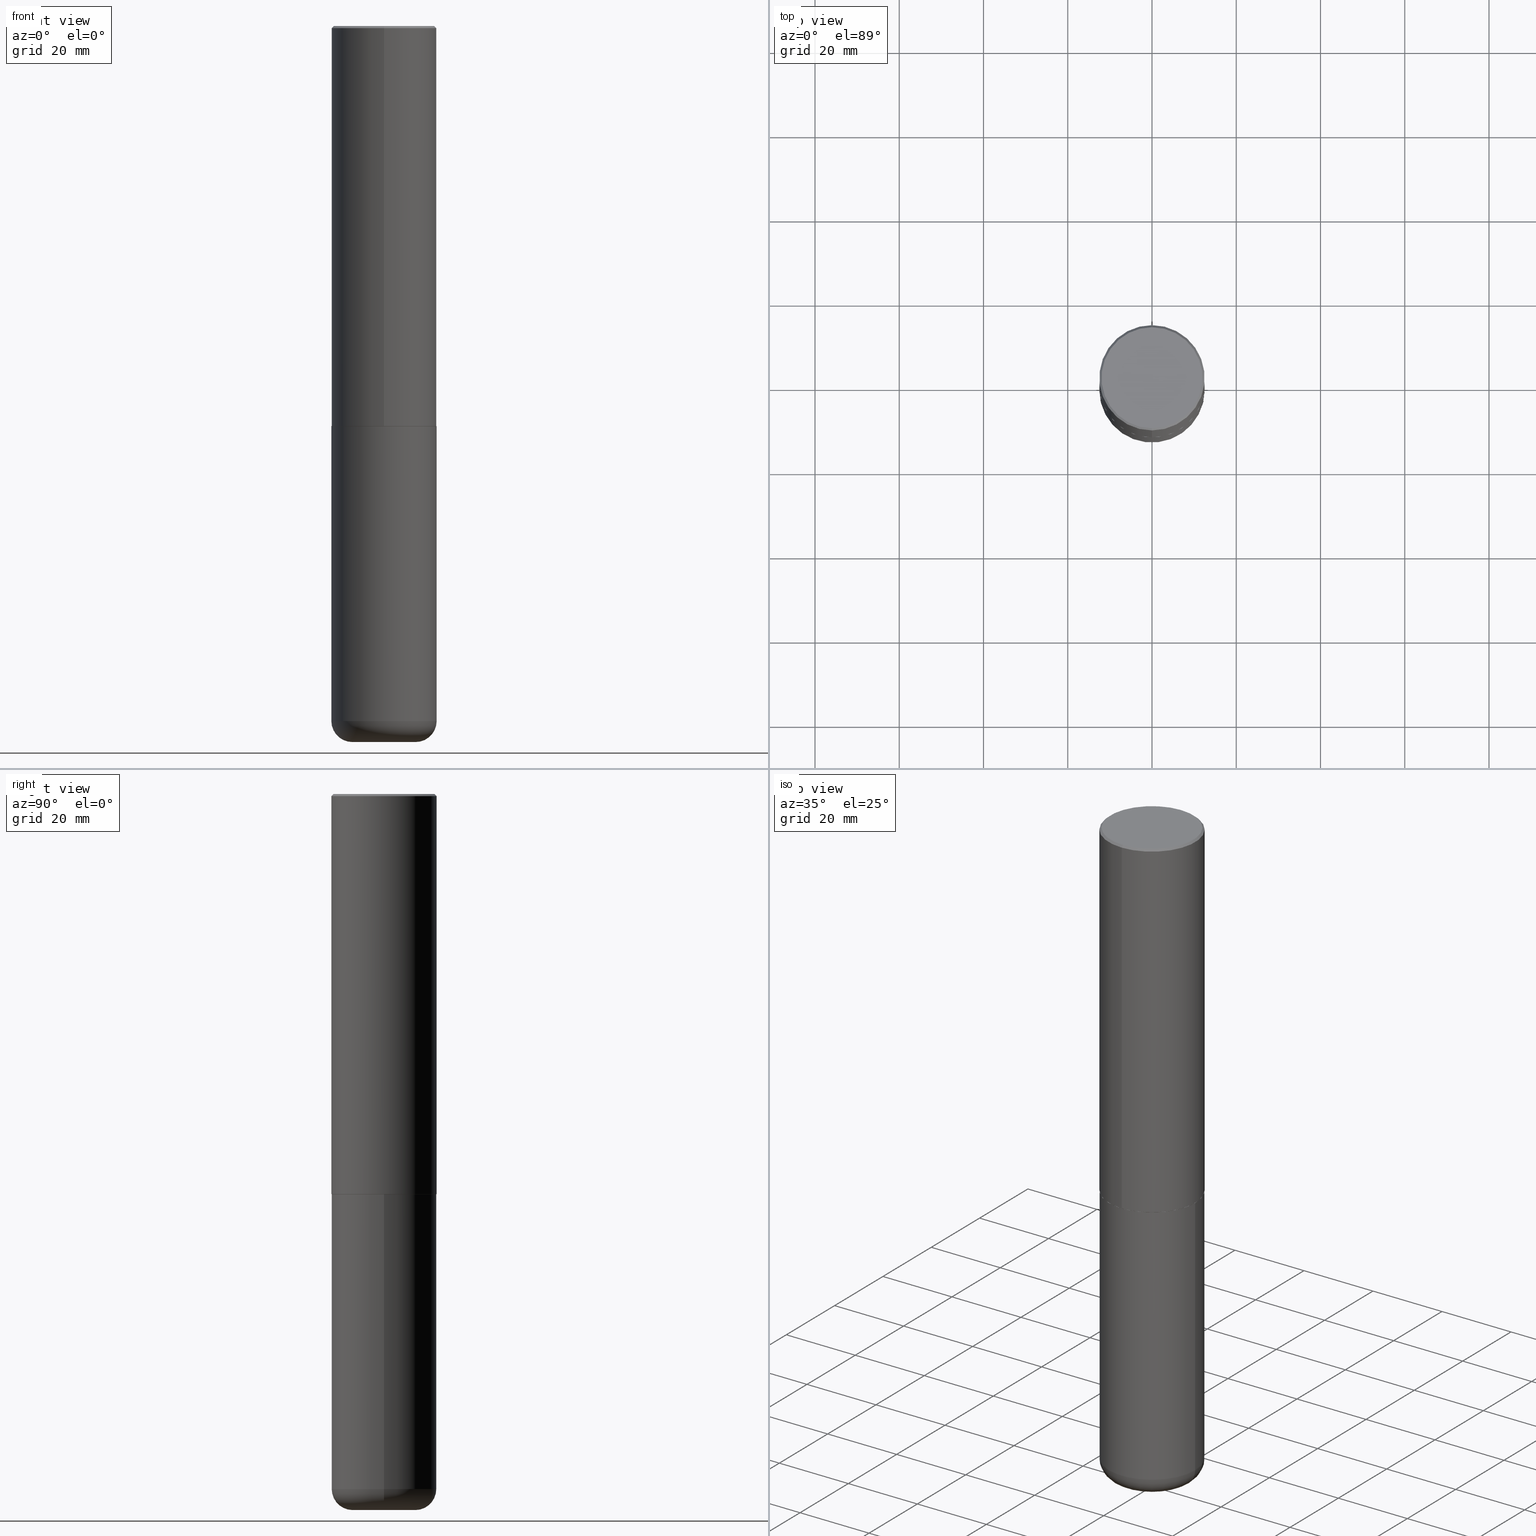
[diagram: canonical four-view strip — front | top / right | iso, engineering-drawing reading convention]
A machine part, canonical four-view strip (front | top / right | iso — engineering-drawing reading convention). The complete STEP part file that produces these views, byte-faithful:
ISO-10303-21;
HEADER;
FILE_DESCRIPTION (( 'STEP AP203' ),
    '1' );
FILE_NAME ('47632.STEP',
    '2024-03-06T19:43:53',
    ( '' ),
    ( '' ),
    'SwSTEP 2.0',
    'SolidWorks 2023',
    '' );
FILE_SCHEMA (( 'CONFIG_CONTROL_DESIGN' ));
ENDSEC;

DATA;
#1 = EDGE_LOOP ( 'NONE', ( #55, #226, #225, #96 ) ) ;
#2 = ORIENTED_EDGE ( 'NONE', *, *, #336, .T. ) ;
#3 = SHAPE_DEFINITION_REPRESENTATION ( #238, #382 ) ;
#4 = CIRCLE ( 'NONE', #80, 0.4921499999999999764 ) ;
#5 = AXIS2_PLACEMENT_3D ( 'NONE', #122, #49, #256 ) ;
#6 = LENGTH_MEASURE_WITH_UNIT ( LENGTH_MEASURE( 0.02539999999999999897 ), #331 );
#7 = VERTEX_POINT ( 'NONE', #363 ) ;
#8 = CALENDAR_DATE ( 2024, 6, 3 ) ;
#9 = EDGE_CURVE ( 'NONE', #65, #27, #166, .T. ) ;
#10 = CIRCLE ( 'NONE', #140, 0.4921499999999999764 ) ;
#11 = DIRECTION ( 'NONE',  ( -6.982962677686265922E-15, -1.000000000000000000, 3.337287582609300506E-15 ) ) ;
#12 = DIRECTION ( 'NONE',  ( 7.105427357601001859E-15, 1.000000000000000000, -3.491481338843145583E-15 ) ) ;
#13 = FACE_OUTER_BOUND ( 'NONE', #262, .T. ) ;
#14 = DIRECTION ( 'NONE',  ( 4.937700262164540154E-15, 0.7071067811865440200, -0.7071067811865511255 ) ) ;
#15 = LINE ( 'NONE', #81, #221 ) ;
#16 = DIRECTION ( 'NONE',  ( -2.445468806185136597E-29, 3.491481338843145583E-15, 1.000000000000000000 ) ) ;
#17 = EDGE_CURVE ( 'NONE', #417, #24, #20, .T. ) ;
#18 = CARTESIAN_POINT ( 'NONE',  ( -3.436665081823296565E-15, -0.4921500000000000874, 1.717974658438411319E-15 ) ) ;
#19 = DIRECTION ( 'NONE',  ( -2.445976594451651952E-29, 3.490754157143982552E-15, 1.000000000000000000 ) ) ;
#20 = CIRCLE ( 'NONE', #376, 0.4911499999999999755 ) ;
#21 = DIRECTION ( 'NONE',  ( -2.445976594451651392E-29, 3.490754157143982552E-15, 1.000000000000000000 ) ) ;
#22 = CARTESIAN_POINT ( 'NONE',  ( -3.307789109625541747E-15, -0.4721499999999996255, 1.869778885941491673E-15 ) ) ;
#23 = DIRECTION ( 'NONE',  ( -6.982962677686265922E-15, -1.000000000000000000, 3.337287582609300506E-15 ) ) ;
#24 = VERTEX_POINT ( 'NONE', #284 ) ;
#25 = EDGE_CURVE ( 'NONE', #33, #7, #288, .T. ) ;
#26 = CIRCLE ( 'NONE', #311, 0.4921500000000003650 ) ;
#27 = VERTEX_POINT ( 'NONE', #149 ) ;
#28 = DIRECTION ( 'NONE',  ( -2.445468806185136597E-29, 3.491481338843145583E-15, 1.000000000000000000 ) ) ;
#29 = EDGE_CURVE ( 'NONE', #332, #95, #4, .T. ) ;
#30 = ORIENTED_EDGE ( 'NONE', *, *, #204, .T. ) ;
#31 = ORIENTED_EDGE ( 'NONE', *, *, #103, .F. ) ;
#32 = ORIENTED_EDGE ( 'NONE', *, *, #366, .T. ) ;
#33 = VERTEX_POINT ( 'NONE', #117 ) ;
#34 = AXIS2_PLACEMENT_3D ( 'NONE', #404, #348, #114 ) ;
#35 = APPROVAL_DATE_TIME ( #66, #329 ) ;
#36 = PERSON_AND_ORGANIZATION ( #93, #415 ) ;
#37 = CIRCLE ( 'NONE', #178, 0.1968999999999995754 ) ;
#38 = VECTOR ( 'NONE', #193, 39.37007874015748854 ) ;
#39 = DIRECTION ( 'NONE',  ( -2.445468806185136597E-29, 3.491481338843145583E-15, 1.000000000000000000 ) ) ;
#40 = DIRECTION ( 'NONE',  ( 6.982962677686265922E-15, 1.000000000000000000, -3.486624039460257331E-15 ) ) ;
#41 = DIRECTION ( 'NONE',  ( -2.445468806185136597E-29, 3.491481338843145583E-15, 1.000000000000000000 ) ) ;
#42 = EDGE_CURVE ( 'NONE', #95, #332, #10, .T. ) ;
#43 = DIRECTION ( 'NONE',  ( -2.445976594451651952E-29, 3.490754157143982552E-15, 1.000000000000000000 ) ) ;
#44 = CYLINDRICAL_SURFACE ( 'NONE', #151, 0.4921500000000000874 ) ;
#45 = VECTOR ( 'NONE', #154, 39.37007874015748143 ) ;
#46 = CIRCLE ( 'NONE', #112, 0.2952500000000000124 ) ;
#47 = CARTESIAN_POINT ( 'NONE',  ( 4.891953188903329688E-31, -6.981508314288001687E-17, -0.02000000000000010797 ) ) ;
#48 = DIRECTION ( 'NONE',  ( -4.937700262167413974E-15, -0.7071067811869555797, 0.7071067811861394548 ) ) ;
#49 = DIRECTION ( 'NONE',  ( 2.438088387897960049E-29, -3.491481338843145188E-15, -1.000000000000000000 ) ) ;
#50 = AXIS2_PLACEMENT_3D ( 'NONE', #142, #272, #219 ) ;
#51 = CARTESIAN_POINT ( 'NONE',  ( -0.4921499999999999764, 3.496936074043332897E-15, -2.420853904668951509E-29 ) ) ;
#52 = SECURITY_CLASSIFICATION ( '', '', #156 ) ;
#53 = LINE ( 'NONE', #319, #45 ) ;
#54 = DIRECTION ( 'NONE',  ( 1.000000000000000000, -6.982962677686265922E-15, 0.000000000000000000 ) ) ;
#55 = ORIENTED_EDGE ( 'NONE', *, *, #29, .T. ) ;
#56 = PERSON_AND_ORGANIZATION_ROLE ( 'classification_officer' ) ;
#57 = CARTESIAN_POINT ( 'NONE',  ( 9.146297882013029477E-29, -1.305848935540725085E-14, -3.740100000000000424 ) ) ;
#58 = DIRECTION ( 'NONE',  ( -2.445976594451651952E-29, 3.490754157143982552E-15, 1.000000000000000000 ) ) ;
#59 = AXIS2_PLACEMENT_3D ( 'NONE', #76, #148, #209 ) ;
#60 =( GEOMETRIC_REPRESENTATION_CONTEXT ( 3 ) GLOBAL_UNCERTAINTY_ASSIGNED_CONTEXT ( ( #75 ) ) GLOBAL_UNIT_ASSIGNED_CONTEXT ( ( #413, #200, #97 ) ) REPRESENTATION_CONTEXT ( 'NONE', 'WORKASPACE' ) );
#61 = ORIENTED_EDGE ( 'NONE', *, *, #241, .F. ) ;
#62 = COORDINATED_UNIVERSAL_TIME_OFFSET ( 5, 0, .BEHIND. ) ;
#63 = ORIENTED_EDGE ( 'NONE', *, *, #17, .F. ) ;
#64 = ADVANCED_FACE ( 'NONE', ( #108 ), #104, .T. ) ;
#65 = VERTEX_POINT ( 'NONE', #173 ) ;
#66 = DATE_AND_TIME ( #302, #402 ) ;
#67 = DESIGN_CONTEXT ( 'detailed design', #116, 'design' ) ;
#68 = CARTESIAN_POINT ( 'NONE',  ( -3.429682119145517860E-15, -0.4911500000000130206, -3.740099999999998204 ) ) ;
#69 = DATE_AND_TIME ( #8, #260 ) ;
#70 = CC_DESIGN_PERSON_AND_ORGANIZATION_ASSIGNMENT ( #135, #356, ( #73 ) ) ;
#71 = DIRECTION ( 'NONE',  ( 0.000000000000000000, 0.000000000000000000, 1.000000000000000000 ) ) ;
#72 = CIRCLE ( 'NONE', #206, 0.2952500000000000124 ) ;
#73 = PRODUCT_DEFINITION_FORMATION_WITH_SPECIFIED_SOURCE ( 'ANY', '', #378, .NOT_KNOWN. ) ;
#74 = CARTESIAN_POINT ( 'NONE',  ( 4.891953188903329688E-31, -6.981508314288001687E-17, -0.02000000000000010797 ) ) ;
#75 = UNCERTAINTY_MEASURE_WITH_UNIT (LENGTH_MEASURE( 1.000000000000000082E-05 ), #413, 'distance_accuracy_value', 'NONE');
#76 = CARTESIAN_POINT ( 'NONE',  ( 1.588576536497864771E-28, -2.268066277712507367E-14, -6.495999999999999552 ) ) ;
#77 = DIRECTION ( 'NONE',  ( -6.982962677686265922E-15, -1.000000000000000000, 3.490754157143982946E-15 ) ) ;
#78 = CARTESIAN_POINT ( 'NONE',  ( -5.420756467185317189E-45, 7.736185299407739239E-31, 2.216193106459615290E-16 ) ) ;
#79 = ORIENTED_EDGE ( 'NONE', *, *, #42, .F. ) ;
#80 = AXIS2_PLACEMENT_3D ( 'NONE', #373, #210, #399 ) ;
#81 = CARTESIAN_POINT ( 'NONE',  ( 3.496936074043333291E-15, 0.4921500000000000874, -1.717974658438411319E-15 ) ) ;
#82 = EDGE_CURVE ( 'NONE', #383, #95, #37, .T. ) ;
#83 = DIRECTION ( 'NONE',  ( -1.000000000000000000, 6.982962677686265922E-15, -4.876176775795935793E-29 ) ) ;
#84 = DIRECTION ( 'NONE',  ( 1.000000000000000000, -6.982962677686265922E-15, 4.876176775795935793E-29 ) ) ;
#85 = FACE_OUTER_BOUND ( 'NONE', #355, .T. ) ;
#86 = EDGE_CURVE ( 'NONE', #100, #91, #235, .T. ) ;
#87 = CLOSED_SHELL ( 'NONE', ( #183, #120, #64, #249, #132, #322, #354, #90 ) ) ;
#88 = DIRECTION ( 'NONE',  ( -6.982962677686265922E-15, -1.000000000000000000, 3.337287582609300506E-15 ) ) ;
#89 = DIRECTION ( 'NONE',  ( 1.000000000000000000, -6.982962677686265922E-15, 0.000000000000000000 ) ) ;
#90 = ADVANCED_FACE ( 'NONE', ( #411 ), #224, .F. ) ;
#91 = VERTEX_POINT ( 'NONE', #372 ) ;
#92 = ORIENTED_EDGE ( 'NONE', *, *, #29, .F. ) ;
#93 = PERSON ( 'UNSPECIFIED', 'UNSPECIFIED', 'UNSPECIFIED', ('UNSPECIFIED'), ('UNSPECIFIED'), ('UNSPECIFIED') ) ;
#94 = FACE_OUTER_BOUND ( 'NONE', #141, .T. ) ;
#95 = VERTEX_POINT ( 'NONE', #213 ) ;
#96 = ORIENTED_EDGE ( 'NONE', *, *, #366, .F. ) ;
#97 =( NAMED_UNIT ( * ) SI_UNIT ( $, .STERADIAN. ) SOLID_ANGLE_UNIT ( ) );
#98 = AXIS2_PLACEMENT_3D ( 'NONE', #128, #251, #392 ) ;
#99 = ORIENTED_EDGE ( 'NONE', *, *, #375, .F. ) ;
#100 = VERTEX_POINT ( 'NONE', #406 ) ;
#101 = ORIENTED_EDGE ( 'NONE', *, *, #172, .T. ) ;
#102 = ORIENTED_EDGE ( 'NONE', *, *, #389, .F. ) ;
#103 = EDGE_CURVE ( 'NONE', #254, #7, #315, .T. ) ;
#104 = CONICAL_SURFACE ( 'NONE', #414, 0.4921499999999999209, 0.7853981633974467247 ) ;
#105 = CC_DESIGN_APPROVAL ( #275, ( #52 ) ) ;
#106 = PERSON_AND_ORGANIZATION ( #93, #415 ) ;
#107 = CARTESIAN_POINT ( 'NONE',  ( 9.146297882013029477E-29, -1.305848935540725085E-14, -3.740100000000000424 ) ) ;
#108 = FACE_OUTER_BOUND ( 'NONE', #175, .T. ) ;
#109 = LINE ( 'NONE', #18, #347 ) ;
#110 = DIRECTION ( 'NONE',  ( -2.445468806185136597E-29, 3.491481338843145583E-15, 1.000000000000000000 ) ) ;
#111 = CIRCLE ( 'NONE', #34, 0.4921499999999999209 ) ;
#112 = AXIS2_PLACEMENT_3D ( 'NONE', #369, #39, #343 ) ;
#113 = CARTESIAN_POINT ( 'NONE',  ( -3.429682119145517860E-15, -0.4911500000000130206, -3.740099999999998204 ) ) ;
#114 = DIRECTION ( 'NONE',  ( -6.982962677686265922E-15, -1.000000000000000000, 3.486624039460257331E-15 ) ) ;
#115 = DIRECTION ( 'NONE',  ( 1.000000000000000000, -6.982962677686265922E-15, 0.000000000000000000 ) ) ;
#116 = APPLICATION_CONTEXT ( 'configuration controlled 3d designs of mechanical parts and assemblies' ) ;
#117 = CARTESIAN_POINT ( 'NONE',  ( -3.376394089603257868E-15, -0.4921499999999999764, -0.01999999999999839059 ) ) ;
#118 = PLANE ( 'NONE',  #274 ) ;
#119 = DIRECTION ( 'NONE',  ( -2.445976594451651952E-29, 3.490754157143982552E-15, 1.000000000000000000 ) ) ;
#120 = ADVANCED_FACE ( 'NONE', ( #408 ), #182, .T. ) ;
#121 = CALENDAR_DATE ( 2024, 6, 3 ) ;
#122 = CARTESIAN_POINT ( 'NONE',  ( 3.366467196184149442E-28, 1.402716959511487627E-15, -6.692899999999999849 ) ) ;
#123 = AXIS2_PLACEMENT_3D ( 'NONE', #276, #43, #11 ) ;
#124 = CARTESIAN_POINT ( 'NONE',  ( -0.2952500000000000124, -2.022699236424666989E-14, -6.692899999999998961 ) ) ;
#125 = AXIS2_PLACEMENT_3D ( 'NONE', #145, #273, #88 ) ;
#126 = CARTESIAN_POINT ( 'NONE',  ( 9.148197060908621523E-29, -1.305576962313420868E-14, -3.740099999999999980 ) ) ;
#127 = PLANE ( 'NONE',  #5 ) ;
#128 = CARTESIAN_POINT ( 'NONE',  ( 0.000000000000000000, 0.000000000000000000, 0.000000000000000000 ) ) ;
#129 = ORIENTED_EDGE ( 'NONE', *, *, #133, .T. ) ;
#130 = DIRECTION ( 'NONE',  ( -6.982962677686265922E-15, -1.000000000000000000, 3.490754157143982552E-15 ) ) ;
#131 = CYLINDRICAL_SURFACE ( 'NONE', #98, 0.4921499999999999764 ) ;
#132 = ADVANCED_FACE ( 'NONE', ( #85 ), #44, .T. ) ;
#133 = EDGE_CURVE ( 'NONE', #24, #91, #53, .T. ) ;
#134 = ORIENTED_EDGE ( 'NONE', *, *, #246, .F. ) ;
#135 = PERSON_AND_ORGANIZATION ( #93, #415 ) ;
#136 = EDGE_LOOP ( 'NONE', ( #102, #358, #294, #418 ) ) ;
#137 = EDGE_LOOP ( 'NONE', ( #301, #387, #92, #416 ) ) ;
#138 = ORIENTED_EDGE ( 'NONE', *, *, #167, .T. ) ;
#139 = VERTEX_POINT ( 'NONE', #22 ) ;
#140 = AXIS2_PLACEMENT_3D ( 'NONE', #313, #16, #115 ) ;
#141 = EDGE_LOOP ( 'NONE', ( #63, #234 ) ) ;
#142 = CARTESIAN_POINT ( 'NONE',  ( 4.891953188903329688E-31, -6.981508314288001687E-17, -0.02000000000000010797 ) ) ;
#143 = DIRECTION ( 'NONE',  ( 1.000000000000000000, -6.982962677686264344E-15, 4.883557194083111780E-29 ) ) ;
#144 = CARTESIAN_POINT ( 'NONE',  ( 9.145751084314172604E-29, -1.305227886897706845E-14, -3.739100000000000534 ) ) ;
#145 = CARTESIAN_POINT ( 'NONE',  ( 9.148197060908621523E-29, -1.305576962313420868E-14, -3.740099999999999980 ) ) ;
#146 = AXIS2_PLACEMENT_3D ( 'NONE', #47, #184, #314 ) ;
#147 = LOCAL_TIME ( 14, 43, 53.00000000000000000, #255 ) ;
#148 = DIRECTION ( 'NONE',  ( -2.445468806185136597E-29, 3.491481338843145583E-15, 1.000000000000000000 ) ) ;
#149 = CARTESIAN_POINT ( 'NONE',  ( -0.4921499999999999764, -1.437263999222282936E-14, -3.740100000000000424 ) ) ;
#150 = DIRECTION ( 'NONE',  ( -6.982962677686265922E-15, -1.000000000000000000, 3.330506545156063496E-15 ) ) ;
#151 = AXIS2_PLACEMENT_3D ( 'NONE', #177, #277, #188 ) ;
#152 = CIRCLE ( 'NONE', #365, 0.4911499999999999755 ) ;
#153 = DIRECTION ( 'NONE',  ( -2.445468806185136877E-29, 3.491481338843145188E-15, 1.000000000000000000 ) ) ;
#154 = DIRECTION ( 'NONE',  ( 5.024295867790978808E-15, 0.7071067811869604647, 0.7071067811861345698 ) ) ;
#155 = CC_DESIGN_PERSON_AND_ORGANIZATION_ASSIGNMENT ( #381, #56, ( #52 ) ) ;
#156 = SECURITY_CLASSIFICATION_LEVEL ( 'unclassified' ) ;
#157 = PLANE ( 'NONE',  #282 ) ;
#158 = ORIENTED_EDGE ( 'NONE', *, *, #162, .F. ) ;
#159 = PERSON_AND_ORGANIZATION ( #93, #415 ) ;
#160 = CIRCLE ( 'NONE', #265, 0.4721499999999996255 ) ;
#161 = ORIENTED_EDGE ( 'NONE', *, *, #217, .T. ) ;
#162 = EDGE_CURVE ( 'NONE', #383, #333, #72, .T. ) ;
#163 = FACE_OUTER_BOUND ( 'NONE', #192, .T. ) ;
#164 = DIRECTION ( 'NONE',  ( -2.445976594451651952E-29, 3.490754157143982552E-15, 1.000000000000000000 ) ) ;
#165 = ORIENTED_EDGE ( 'NONE', *, *, #212, .T. ) ;
#166 = CIRCLE ( 'NONE', #230, 0.4921499999999999764 ) ;
#167 = EDGE_CURVE ( 'NONE', #139, #254, #179, .T. ) ;
#168 = PERSON_AND_ORGANIZATION ( #93, #415 ) ;
#169 = APPROVAL_PERSON_ORGANIZATION ( #190, #329, #237 ) ;
#170 = EDGE_LOOP ( 'NONE', ( #30, #138 ) ) ;
#171 = DIMENSIONAL_EXPONENTS ( 1.000000000000000000, 0.000000000000000000, 0.000000000000000000, 0.000000000000000000, 0.000000000000000000, 0.000000000000000000, 0.000000000000000000 ) ;
#172 = EDGE_CURVE ( 'NONE', #100, #33, #109, .T. ) ;
#173 = CARTESIAN_POINT ( 'NONE',  ( 0.4921499999999999764, -1.649515443723054663E-14, -3.740100000000000424 ) ) ;
#174 = FACE_OUTER_BOUND ( 'NONE', #136, .T. ) ;
#175 = EDGE_LOOP ( 'NONE', ( #257, #194, #390, #31 ) ) ;
#176 = CARTESIAN_POINT ( 'NONE',  ( 1.588576536497864771E-28, -2.268066277712507367E-14, -6.495999999999999552 ) ) ;
#177 = CARTESIAN_POINT ( 'NONE',  ( 0.000000000000000000, 0.000000000000000000, 0.000000000000000000 ) ) ;
#178 = AXIS2_PLACEMENT_3D ( 'NONE', #306, #12, #371 ) ;
#179 = CIRCLE ( 'NONE', #239, 0.4721499999999996255 ) ;
#180 = CC_DESIGN_SECURITY_CLASSIFICATION ( #52, ( #73 ) ) ;
#181 = LINE ( 'NONE', #113, #215 ) ;
#182 = CYLINDRICAL_SURFACE ( 'NONE', #281, 0.4921500000000000874 ) ;
#183 = ADVANCED_FACE ( 'NONE', ( #13 ), #196, .T. ) ;
#184 = DIRECTION ( 'NONE',  ( 2.445976594451651952E-29, -3.490754157143982552E-15, -1.000000000000000000 ) ) ;
#185 = LINE ( 'NONE', #223, #300 ) ;
#186 = VECTOR ( 'NONE', #14, 39.37007874015748143 ) ;
#187 = CIRCLE ( 'NONE', #207, 0.4921499999999999764 ) ;
#188 = DIRECTION ( 'NONE',  ( -6.982962677686265922E-15, -1.000000000000000000, 3.490754157143982552E-15 ) ) ;
#189 = PRODUCT_RELATED_PRODUCT_CATEGORY ( 'detail', '', ( #378 ) ) ;
#190 = PERSON_AND_ORGANIZATION ( #93, #415 ) ;
#191 = CALENDAR_DATE ( 2024, 6, 3 ) ;
#192 = EDGE_LOOP ( 'NONE', ( #243, #158 ) ) ;
#193 = DIRECTION ( 'NONE',  ( -4.851104656540955597E-15, -0.7071067811865487940, -0.7071067811865461294 ) ) ;
#194 = ORIENTED_EDGE ( 'NONE', *, *, #389, .T. ) ;
#195 = CARTESIAN_POINT ( 'NONE',  ( 3.297005828269567997E-15, 0.4721499999999996255, -1.537349919972549256E-15 ) ) ;
#196 = CONICAL_SURFACE ( 'NONE', #123, 0.4911499999999999755, 0.7853981633980288146 ) ;
#197 = ORIENTED_EDGE ( 'NONE', *, *, #42, .T. ) ;
#198 = APPROVAL_DATE_TIME ( #258, #344 ) ;
#199 = ADVANCED_FACE ( 'NONE', ( #377 ), #248, .T. ) ;
#200 =( NAMED_UNIT ( * ) PLANE_ANGLE_UNIT ( ) SI_UNIT ( $, .RADIAN. ) );
#201 = ORIENTED_EDGE ( 'NONE', *, *, #82, .F. ) ;
#202 = CC_DESIGN_PERSON_AND_ORGANIZATION_ASSIGNMENT ( #159, #291, ( #73 ) ) ;
#203 = DIRECTION ( 'NONE',  ( 1.000000000000000000, 0.000000000000000000, 0.000000000000000000 ) ) ;
#204 = EDGE_CURVE ( 'NONE', #254, #139, #160, .T. ) ;
#205 = APPLICATION_PROTOCOL_DEFINITION ( 'international standard', 'config_control_design', 1994, #339 ) ;
#206 = AXIS2_PLACEMENT_3D ( 'NONE', #351, #310, #242 ) ;
#207 = AXIS2_PLACEMENT_3D ( 'NONE', #107, #110, #89 ) ;
#208 = DIRECTION ( 'NONE',  ( 2.445976594451651952E-29, -3.490754157143982552E-15, -1.000000000000000000 ) ) ;
#209 = DIRECTION ( 'NONE',  ( 1.000000000000000000, -6.982962677686264344E-15, 4.883557194083111780E-29 ) ) ;
#210 = DIRECTION ( 'NONE',  ( -2.445468806185136597E-29, 3.491481338843145583E-15, 1.000000000000000000 ) ) ;
#211 = CARTESIAN_POINT ( 'NONE',  ( -5.420756467185317189E-45, 7.736185299407739239E-31, 2.216193106459615290E-16 ) ) ;
#212 = EDGE_CURVE ( 'NONE', #333, #332, #395, .T. ) ;
#213 = CARTESIAN_POINT ( 'NONE',  ( -0.4921499999999997543, -1.918372670308173998E-14, -6.495999999999999552 ) ) ;
#214 = DIRECTION ( 'NONE',  ( -6.982962677686265922E-15, -1.000000000000000000, 3.490754157143982946E-15 ) ) ;
#215 = VECTOR ( 'NONE', #48, 39.37007874015748143 ) ;
#216 = VECTOR ( 'NONE', #412, 39.37007874015748143 ) ;
#217 = EDGE_CURVE ( 'NONE', #91, #7, #15, .T. ) ;
#218 = CARTESIAN_POINT ( 'NONE',  ( 0.2952499999999999569, -2.474238250771194590E-14, -6.495999999999999552 ) ) ;
#219 = DIRECTION ( 'NONE',  ( -6.982962677686265922E-15, -1.000000000000000000, 3.486624039460257331E-15 ) ) ;
#220 = DIRECTION ( 'NONE',  ( -6.982962677686265922E-15, -1.000000000000000000, 3.490754157143982552E-15 ) ) ;
#221 = VECTOR ( 'NONE', #349, 39.37007874015748143 ) ;
#222 = APPROVAL_STATUS ( 'not_yet_approved' ) ;
#223 = CARTESIAN_POINT ( 'NONE',  ( 0.4921499999999999764, -3.436665081823295777E-15, 2.399810400207969603E-29 ) ) ;
#224 = PLANE ( 'NONE',  #401 ) ;
#225 = ORIENTED_EDGE ( 'NONE', *, *, #9, .F. ) ;
#226 = ORIENTED_EDGE ( 'NONE', *, *, #375, .T. ) ;
#227 = ORIENTED_EDGE ( 'NONE', *, *, #394, .F. ) ;
#228 = ADVANCED_FACE ( 'NONE', ( #403 ), #259, .T. ) ;
#229 = COORDINATED_UNIVERSAL_TIME_OFFSET ( 5, 0, .BEHIND. ) ;
#230 = AXIS2_PLACEMENT_3D ( 'NONE', #57, #28, #54 ) ;
#231 = LOCAL_TIME ( 14, 43, 53.00000000000000000, #229 ) ;
#232 = FACE_OUTER_BOUND ( 'NONE', #1, .T. ) ;
#233 = EDGE_LOOP ( 'NONE', ( #99, #197, #32, #227 ) ) ;
#234 = ORIENTED_EDGE ( 'NONE', *, *, #336, .F. ) ;
#235 = CIRCLE ( 'NONE', #341, 0.4921500000000003650 ) ;
#236 = CC_DESIGN_APPROVAL ( #344, ( #73 ) ) ;
#237 = APPROVAL_ROLE ( '' ) ;
#238 = PRODUCT_DEFINITION_SHAPE ( 'NONE', 'NONE',  #309 ) ;
#239 = AXIS2_PLACEMENT_3D ( 'NONE', #211, #271, #77 ) ;
#240 = DIRECTION ( 'NONE',  ( -6.982962677686265922E-15, -1.000000000000000000, 3.330506545156063496E-15 ) ) ;
#241 = EDGE_CURVE ( 'NONE', #7, #33, #111, .T. ) ;
#242 = DIRECTION ( 'NONE',  ( 1.000000000000000000, -6.982962677686273021E-15, 0.000000000000000000 ) ) ;
#243 = ORIENTED_EDGE ( 'NONE', *, *, #318, .F. ) ;
#244 = AXIS2_PLACEMENT_3D ( 'NONE', #176, #41, #143 ) ;
#245 = CARTESIAN_POINT ( 'NONE',  ( 9.146297882013029477E-29, -1.305848935540725085E-14, -3.740100000000000424 ) ) ;
#246 = EDGE_CURVE ( 'NONE', #417, #100, #181, .T. ) ;
#247 = FACE_OUTER_BOUND ( 'NONE', #233, .T. ) ;
#248 = TOROIDAL_SURFACE ( 'NONE', #244, 0.2952499999999999569, 0.1968999999999996031 ) ;
#249 = ADVANCED_FACE ( 'NONE', ( #174 ), #334, .T. ) ;
#250 = CARTESIAN_POINT ( 'NONE',  ( -3.376394089603257868E-15, -0.4921499999999999764, -0.01999999999999839059 ) ) ;
#251 = DIRECTION ( 'NONE',  ( -2.445468806185136597E-29, 3.491481338843145583E-15, 1.000000000000000000 ) ) ;
#252 = ORIENTED_EDGE ( 'NONE', *, *, #217, .F. ) ;
#253 = DATE_TIME_ROLE ( 'classification_date' ) ;
#254 = VERTEX_POINT ( 'NONE', #374 ) ;
#255 = COORDINATED_UNIVERSAL_TIME_OFFSET ( 5, 0, .BEHIND. ) ;
#256 = DIRECTION ( 'NONE',  ( -1.000000000000000000, 6.982962677686265922E-15, -4.876176775795935793E-29 ) ) ;
#257 = ORIENTED_EDGE ( 'NONE', *, *, #167, .F. ) ;
#258 = DATE_AND_TIME ( #293, #231 ) ;
#259 = TOROIDAL_SURFACE ( 'NONE', #59, 0.2952499999999999569, 0.1968999999999996031 ) ;
#260 = LOCAL_TIME ( 14, 43, 53.00000000000000000, #367 ) ;
#261 = ORIENTED_EDGE ( 'NONE', *, *, #280, .F. ) ;
#262 = EDGE_LOOP ( 'NONE', ( #370, #129, #298, #134 ) ) ;
#263 = ORIENTED_EDGE ( 'NONE', *, *, #246, .T. ) ;
#264 = APPROVAL_STATUS ( 'not_yet_approved' ) ;
#265 = AXIS2_PLACEMENT_3D ( 'NONE', #78, #342, #214 ) ;
#266 = CC_DESIGN_APPROVAL ( #329, ( #309 ) ) ;
#267 = MANIFOLD_SOLID_BREP ( 'Body-Move/Copy2[1]', #324 ) ;
#268 = MANIFOLD_SOLID_BREP ( 'Body-Move/Copy2[2]', #87 ) ;
#269 = PERSON_AND_ORGANIZATION_ROLE ( 'design_owner' ) ;
#270 = CC_DESIGN_PERSON_AND_ORGANIZATION_ASSIGNMENT ( #168, #396, ( #309 ) ) ;
#271 = DIRECTION ( 'NONE',  ( -2.445976594451651952E-29, 3.490754157143982552E-15, 1.000000000000000000 ) ) ;
#272 = DIRECTION ( 'NONE',  ( -2.445976594451651952E-29, 3.490754157143982552E-15, 1.000000000000000000 ) ) ;
#273 = DIRECTION ( 'NONE',  ( -2.445976594451651952E-29, 3.490754157143982552E-15, 1.000000000000000000 ) ) ;
#274 = AXIS2_PLACEMENT_3D ( 'NONE', #245, #380, #83 ) ;
#275 = APPROVAL ( #222, 'UNSPECIFIED' ) ;
#276 = CARTESIAN_POINT ( 'NONE',  ( 9.148197060908621523E-29, -1.305576962313420868E-14, -3.740099999999999980 ) ) ;
#277 = DIRECTION ( 'NONE',  ( -2.445976594451651952E-29, 3.490754157143982552E-15, 1.000000000000000000 ) ) ;
#278 = DIRECTION ( 'NONE',  ( -6.982962677686266711E-15, -1.000000000000000000, 3.491481338843145583E-15 ) ) ;
#279 = CARTESIAN_POINT ( 'NONE',  ( 9.145751084314172604E-29, -1.305227886897706845E-14, -3.739100000000000534 ) ) ;
#280 = EDGE_CURVE ( 'NONE', #91, #100, #26, .T. ) ;
#281 = AXIS2_PLACEMENT_3D ( 'NONE', #308, #119, #220 ) ;
#282 = AXIS2_PLACEMENT_3D ( 'NONE', #285, #21, #130 ) ;
#283 = CARTESIAN_POINT ( 'NONE',  ( 3.436665081823295777E-15, 0.4921499999999998098, -0.02000000000000182188 ) ) ;
#284 = CARTESIAN_POINT ( 'NONE',  ( 3.493383360364624690E-15, 0.4911499999999869304, -3.740100000000001312 ) ) ;
#285 = CARTESIAN_POINT ( 'NONE',  ( 9.148197060908621523E-29, -1.305576962313420868E-14, -3.740099999999999980 ) ) ;
#286 = APPROVAL_ROLE ( '' ) ;
#287 = LINE ( 'NONE', #51, #216 ) ;
#288 = CIRCLE ( 'NONE', #50, 0.4921499999999999209 ) ;
#289 = EDGE_LOOP ( 'NONE', ( #201, #327, #165, #79 ) ) ;
#290 = APPROVAL_PERSON_ORGANIZATION ( #362, #275, #286 ) ;
#291 = PERSON_AND_ORGANIZATION_ROLE ( 'creator' ) ;
#292 = EDGE_LOOP ( 'NONE', ( #385, #330 ) ) ;
#293 = CALENDAR_DATE ( 2024, 6, 3 ) ;
#294 = ORIENTED_EDGE ( 'NONE', *, *, #103, .T. ) ;
#295 = APPROVAL_DATE_TIME ( #386, #275 ) ;
#296 = ADVANCED_FACE ( 'NONE', ( #405 ), #118, .F. ) ;
#297 = CC_DESIGN_PERSON_AND_ORGANIZATION_ASSIGNMENT ( #106, #269, ( #378 ) ) ;
#298 = ORIENTED_EDGE ( 'NONE', *, *, #86, .F. ) ;
#299 = AXIS2_PLACEMENT_3D ( 'NONE', #218, #278, #305 ) ;
#300 = VECTOR ( 'NONE', #153, 39.37007874015748143 ) ;
#301 = ORIENTED_EDGE ( 'NONE', *, *, #318, .T. ) ;
#302 = CALENDAR_DATE ( 2024, 6, 3 ) ;
#303 = CARTESIAN_POINT ( 'NONE',  ( 0.000000000000000000, 0.000000000000000000, 0.000000000000000000 ) ) ;
#304 = AXIS2_PLACEMENT_3D ( 'NONE', #303, #71, #203 ) ;
#305 = DIRECTION ( 'NONE',  ( 1.000000000000000000, -6.982962677686270655E-15, 0.000000000000000000 ) ) ;
#306 = CARTESIAN_POINT ( 'NONE',  ( -0.2952499999999999569, -2.058278534979337620E-14, -6.495999999999999552 ) ) ;
#307 = FACE_OUTER_BOUND ( 'NONE', #364, .T. ) ;
#308 = CARTESIAN_POINT ( 'NONE',  ( 0.000000000000000000, 0.000000000000000000, 0.000000000000000000 ) ) ;
#309 = PRODUCT_DEFINITION ( 'UNKNOWN', '', #73, #67 ) ;
#310 = DIRECTION ( 'NONE',  ( -2.445468806185136597E-29, 3.491481338843145583E-15, 1.000000000000000000 ) ) ;
#311 = AXIS2_PLACEMENT_3D ( 'NONE', #279, #19, #150 ) ;
#312 = AXIS2_PLACEMENT_3D ( 'NONE', #407, #353, #84 ) ;
#313 = CARTESIAN_POINT ( 'NONE',  ( 1.588576536497864771E-28, -2.268066277712507367E-14, -6.495999999999999552 ) ) ;
#314 = DIRECTION ( 'NONE',  ( 6.982962677686265922E-15, 1.000000000000000000, -3.486624039460257331E-15 ) ) ;
#315 = LINE ( 'NONE', #283, #186 ) ;
#316 = DIRECTION ( 'NONE',  ( -6.982962677686265922E-15, -1.000000000000000000, 3.337287582609300506E-15 ) ) ;
#317 = CARTESIAN_POINT ( 'NONE',  ( 0.2952500000000000124, -2.542985518333015688E-14, -6.692899999999998961 ) ) ;
#318 = EDGE_CURVE ( 'NONE', #333, #383, #46, .T. ) ;
#319 = CARTESIAN_POINT ( 'NONE',  ( 3.489830646685823002E-15, 0.4911499999999869304, -3.740100000000001312 ) ) ;
#320 = CARTESIAN_POINT ( 'NONE',  ( 0.4921499999999997543, -2.611732785894836787E-14, -6.495999999999999552 ) ) ;
#321 = ORIENTED_EDGE ( 'NONE', *, *, #25, .F. ) ;
#322 = ADVANCED_FACE ( 'NONE', ( #307 ), #388, .T. ) ;
#323 = CYLINDRICAL_SURFACE ( 'NONE', #312, 0.4921499999999999764 ) ;
#324 = CLOSED_SHELL ( 'NONE', ( #398, #228, #296, #368, #199, #361 ) ) ;
#325 = ORIENTED_EDGE ( 'NONE', *, *, #133, .F. ) ;
#326 = APPROVAL_PERSON_ORGANIZATION ( #36, #344, #352 ) ;
#327 = ORIENTED_EDGE ( 'NONE', *, *, #162, .T. ) ;
#328 = DIRECTION ( 'NONE',  ( 2.445976594451651392E-29, -3.490754157143982552E-15, -1.000000000000000000 ) ) ;
#329 = APPROVAL ( #264, 'UNSPECIFIED' ) ;
#330 = ORIENTED_EDGE ( 'NONE', *, *, #394, .T. ) ;
#331 =( LENGTH_UNIT ( ) NAMED_UNIT ( * ) SI_UNIT ( $, .METRE. ) );
#332 = VERTEX_POINT ( 'NONE', #320 ) ;
#333 = VERTEX_POINT ( 'NONE', #317 ) ;
#334 = CONICAL_SURFACE ( 'NONE', #146, 0.4921499999999999209, 0.7853981633974467247 ) ;
#335 = LOCAL_TIME ( 14, 43, 53.00000000000000000, #62 ) ;
#336 = EDGE_CURVE ( 'NONE', #24, #417, #152, .T. ) ;
#337 = DATE_TIME_ROLE ( 'creation_date' ) ;
#338 = MECHANICAL_CONTEXT ( 'NONE', #339, 'mechanical' ) ;
#339 = APPLICATION_CONTEXT ( 'configuration controlled 3d designs of mechanical parts and assemblies' ) ;
#340 = COORDINATED_UNIVERSAL_TIME_OFFSET ( 5, 0, .BEHIND. ) ;
#341 = AXIS2_PLACEMENT_3D ( 'NONE', #144, #400, #240 ) ;
#342 = DIRECTION ( 'NONE',  ( -2.445976594451651952E-29, 3.490754157143982552E-15, 1.000000000000000000 ) ) ;
#343 = DIRECTION ( 'NONE',  ( 1.000000000000000000, -6.982962677686273021E-15, 0.000000000000000000 ) ) ;
#344 = APPROVAL ( #350, 'UNSPECIFIED' ) ;
#345 = DIRECTION ( 'NONE',  ( -2.445976594451651672E-29, 3.490754157143982552E-15, 1.000000000000000000 ) ) ;
#346 = DIRECTION ( 'NONE',  ( 6.982962677686265922E-15, 1.000000000000000000, -3.490754157143982552E-15 ) ) ;
#347 = VECTOR ( 'NONE', #345, 39.37007874015748143 ) ;
#348 = DIRECTION ( 'NONE',  ( -2.445976594451651952E-29, 3.490754157143982552E-15, 1.000000000000000000 ) ) ;
#349 = DIRECTION ( 'NONE',  ( -2.445976594451651672E-29, 3.490754157143982552E-15, 1.000000000000000000 ) ) ;
#350 = APPROVAL_STATUS ( 'not_yet_approved' ) ;
#351 = CARTESIAN_POINT ( 'NONE',  ( 1.636727817291649742E-28, -2.336813545274328465E-14, -6.692899999999998961 ) ) ;
#352 = APPROVAL_ROLE ( '' ) ;
#353 = DIRECTION ( 'NONE',  ( -2.445468806185136597E-29, 3.491481338843145583E-15, 1.000000000000000000 ) ) ;
#354 = ADVANCED_FACE ( 'NONE', ( #94 ), #157, .F. ) ;
#355 = EDGE_LOOP ( 'NONE', ( #252, #393, #101, #61 ) ) ;
#356 = PERSON_AND_ORGANIZATION_ROLE ( 'design_supplier' ) ;
#357 = LINE ( 'NONE', #250, #38 ) ;
#358 = ORIENTED_EDGE ( 'NONE', *, *, #204, .F. ) ;
#359 = CARTESIAN_POINT ( 'NONE',  ( 9.148197060908621523E-29, -1.305576962313420868E-14, -3.740099999999999980 ) ) ;
#360 = ORIENTED_EDGE ( 'NONE', *, *, #86, .T. ) ;
#361 = ADVANCED_FACE ( 'NONE', ( #163 ), #127, .T. ) ;
#362 = PERSON_AND_ORGANIZATION ( #93, #415 ) ;
#363 = CARTESIAN_POINT ( 'NONE',  ( 3.436665081823295777E-15, 0.4921499999999998098, -0.02000000000000182188 ) ) ;
#364 = EDGE_LOOP ( 'NONE', ( #325, #2, #263, #261 ) ) ;
#365 = AXIS2_PLACEMENT_3D ( 'NONE', #359, #58, #23 ) ;
#366 = EDGE_CURVE ( 'NONE', #332, #65, #185, .T. ) ;
#367 = COORDINATED_UNIVERSAL_TIME_OFFSET ( 5, 0, .BEHIND. ) ;
#368 = ADVANCED_FACE ( 'NONE', ( #247 ), #323, .T. ) ;
#369 = CARTESIAN_POINT ( 'NONE',  ( 1.636727817291649742E-28, -2.336813545274328465E-14, -6.692899999999998961 ) ) ;
#370 = ORIENTED_EDGE ( 'NONE', *, *, #17, .T. ) ;
#371 = DIRECTION ( 'NONE',  ( -1.000000000000000000, 7.105427357601008170E-15, 0.000000000000000000 ) ) ;
#372 = CARTESIAN_POINT ( 'NONE',  ( 3.496936074043380229E-15, 0.4921499999999873198, -3.739100000000002311 ) ) ;
#373 = CARTESIAN_POINT ( 'NONE',  ( 1.588576536497864771E-28, -2.268066277712507367E-14, -6.495999999999999552 ) ) ;
#374 = CARTESIAN_POINT ( 'NONE',  ( 3.366835455046432084E-15, 0.4721499999999996255, -1.426540264649568516E-15 ) ) ;
#375 = EDGE_CURVE ( 'NONE', #95, #27, #287, .T. ) ;
#376 = AXIS2_PLACEMENT_3D ( 'NONE', #126, #164, #316 ) ;
#377 = FACE_OUTER_BOUND ( 'NONE', #289, .T. ) ;
#378 = PRODUCT ( '47632', '47632', '', ( #338 ) ) ;
#379 = CC_DESIGN_DATE_AND_TIME_ASSIGNMENT ( #69, #337, ( #309 ) ) ;
#380 = DIRECTION ( 'NONE',  ( 2.438088387897960049E-29, -3.491481338843145188E-15, -1.000000000000000000 ) ) ;
#381 = PERSON_AND_ORGANIZATION ( #93, #415 ) ;
#382 = ADVANCED_BREP_SHAPE_REPRESENTATION ( '47632', ( #267, #268, #304 ), #60 ) ;
#383 = VERTEX_POINT ( 'NONE', #124 ) ;
#384 = DATE_AND_TIME ( #121, #147 ) ;
#385 = ORIENTED_EDGE ( 'NONE', *, *, #9, .T. ) ;
#386 = DATE_AND_TIME ( #191, #335 ) ;
#387 = ORIENTED_EDGE ( 'NONE', *, *, #82, .T. ) ;
#388 = CONICAL_SURFACE ( 'NONE', #125, 0.4911499999999999755, 0.7853981633980288146 ) ;
#389 = EDGE_CURVE ( 'NONE', #139, #33, #357, .T. ) ;
#390 = ORIENTED_EDGE ( 'NONE', *, *, #25, .T. ) ;
#391 = EDGE_LOOP ( 'NONE', ( #360, #161, #321, #397 ) ) ;
#392 = DIRECTION ( 'NONE',  ( 1.000000000000000000, -6.982962677686265922E-15, 4.876176775795935793E-29 ) ) ;
#393 = ORIENTED_EDGE ( 'NONE', *, *, #280, .T. ) ;
#394 = EDGE_CURVE ( 'NONE', #27, #65, #187, .T. ) ;
#395 = CIRCLE ( 'NONE', #299, 0.1968999999999995754 ) ;
#396 = PERSON_AND_ORGANIZATION_ROLE ( 'creator' ) ;
#397 = ORIENTED_EDGE ( 'NONE', *, *, #172, .F. ) ;
#398 = ADVANCED_FACE ( 'NONE', ( #232 ), #131, .T. ) ;
#399 = DIRECTION ( 'NONE',  ( 1.000000000000000000, -6.982962677686265922E-15, 0.000000000000000000 ) ) ;
#400 = DIRECTION ( 'NONE',  ( -2.445976594451651952E-29, 3.490754157143982552E-15, 1.000000000000000000 ) ) ;
#401 = AXIS2_PLACEMENT_3D ( 'NONE', #195, #328, #346 ) ;
#402 = LOCAL_TIME ( 14, 43, 53.00000000000000000, #340 ) ;
#403 = FACE_OUTER_BOUND ( 'NONE', #137, .T. ) ;
#404 = CARTESIAN_POINT ( 'NONE',  ( 4.891953188903329688E-31, -6.981508314288001687E-17, -0.02000000000000010797 ) ) ;
#405 = FACE_OUTER_BOUND ( 'NONE', #292, .T. ) ;
#406 = CARTESIAN_POINT ( 'NONE',  ( -3.436665081823207030E-15, -0.4921500000000134101, -3.739099999999998758 ) ) ;
#407 = CARTESIAN_POINT ( 'NONE',  ( 0.000000000000000000, 0.000000000000000000, 0.000000000000000000 ) ) ;
#408 = FACE_OUTER_BOUND ( 'NONE', #391, .T. ) ;
#409 = APPLICATION_PROTOCOL_DEFINITION ( 'international standard', 'config_control_design', 1994, #116 ) ;
#410 = CC_DESIGN_DATE_AND_TIME_ASSIGNMENT ( #384, #253, ( #52 ) ) ;
#411 = FACE_OUTER_BOUND ( 'NONE', #170, .T. ) ;
#412 = DIRECTION ( 'NONE',  ( -2.445468806185136877E-29, 3.491481338843145188E-15, 1.000000000000000000 ) ) ;
#413 =( CONVERSION_BASED_UNIT ( 'INCH', #6 ) LENGTH_UNIT ( ) NAMED_UNIT ( #171 ) );
#414 = AXIS2_PLACEMENT_3D ( 'NONE', #74, #208, #40 ) ;
#415 = ORGANIZATION ( 'UNSPECIFIED', 'UNSPECIFIED', '' ) ;
#416 = ORIENTED_EDGE ( 'NONE', *, *, #212, .F. ) ;
#417 = VERTEX_POINT ( 'NONE', #68 ) ;
#418 = ORIENTED_EDGE ( 'NONE', *, *, #241, .T. ) ;
ENDSEC;
END-ISO-10303-21;
